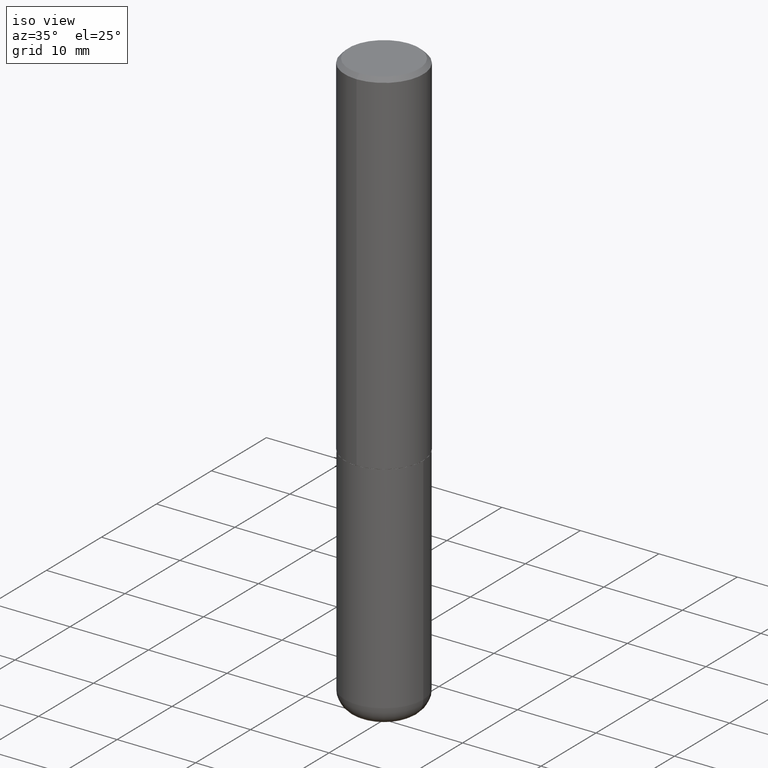
[diagram: clean part render]
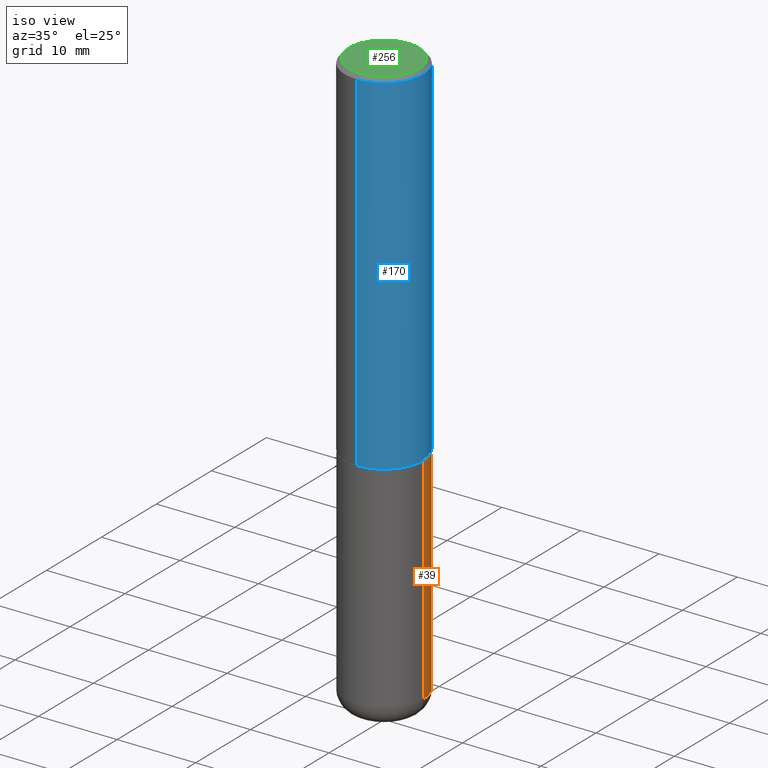
[diagram: same view with three faces highlighted in distinct colors, each labeled with its STEP entity id]
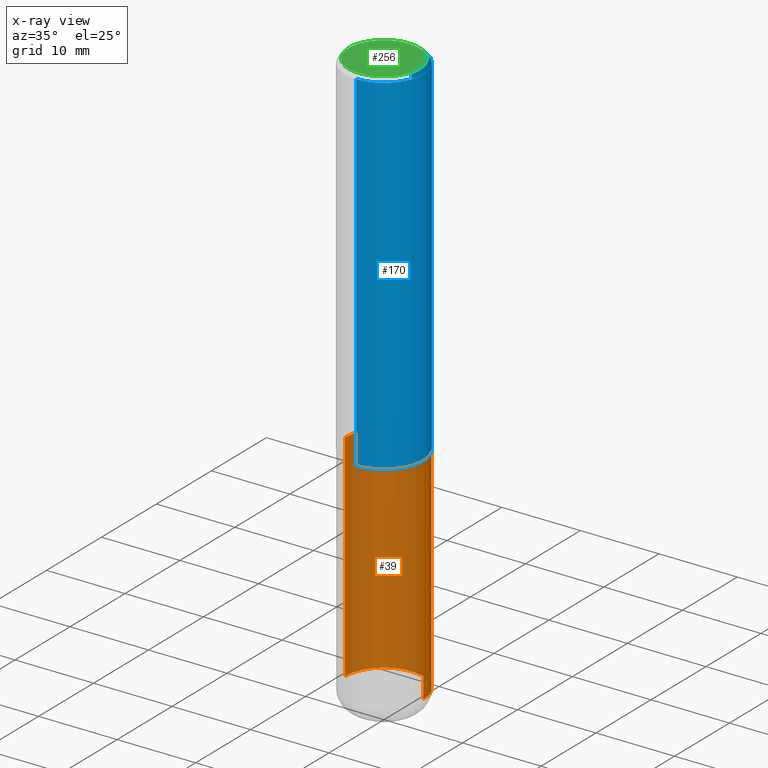
[diagram: x-ray of the same camera — body ghosted, the three highlighted faces saturated]
A machine part, iso view with three faces highlighted in distinct colors.
The next image is the same camera in x-ray (body ghosted, the three faces saturated) — at least one of them is partly hidden behind the body in this view.
Their STEP definitions:

[orange] entity #39 — the highlighted cylindrical surface (partial cylindrical patch) has radius 5 mm, axis along (-0, 0, 1).
#6 = EDGE_CURVE ( 'NONE', #149, #117, #176, .T. ) ;
#14 = CIRCLE ( 'NONE', #167, 0.1968500000000000250 ) ;
#23 = ORIENTED_EDGE ( 'NONE', *, *, #372, .T. ) ;
#24 = CARTESIAN_POINT ( 'NONE',  ( 4.332637083918205306E-29, -6.185857488028398715E-15, -1.771699999999999608 ) ) ;
#33 = EDGE_CURVE ( 'NONE', #306, #265, #368, .T. ) ;
#39 = ADVANCED_FACE ( 'NONE', ( #373 ), #298, .T. ) ;
#54 = DIRECTION ( 'NONE',  ( 1.000000000000000000, -6.982962677686265922E-15, 4.876176775795935793E-29 ) ) ;
#55 = VECTOR ( 'NONE', #57, 39.37007874015748143 ) ;
#57 = DIRECTION ( 'NONE',  ( -2.445468806185136877E-29, 3.491481338843145188E-15, 1.000000000000000000 ) ) ;
#70 = CIRCLE ( 'NONE', #282, 0.1968500000000000250 ) ;
#82 = DIRECTION ( 'NONE',  ( -2.445468806185136597E-29, 3.491481338843145583E-15, 1.000000000000000000 ) ) ;
#86 = EDGE_LOOP ( 'NONE', ( #23, #238, #336, #396 ) ) ;
#87 = DIRECTION ( 'NONE',  ( 1.000000000000000000, -6.982962677686267499E-15, 0.000000000000000000 ) ) ;
#101 = VECTOR ( 'NONE', #305, 39.37007874015748143 ) ;
#117 = VERTEX_POINT ( 'NONE', #343 ) ;
#132 = CARTESIAN_POINT ( 'NONE',  ( 0.1968500000000001915, -1.134068053669641561E-14, -2.854399999999999604 ) ) ;
#149 = VERTEX_POINT ( 'NONE', #132 ) ;
#167 = AXIS2_PLACEMENT_3D ( 'NONE', #401, #362, #404 ) ;
#176 = LINE ( 'NONE', #276, #55 ) ;
#184 = CARTESIAN_POINT ( 'NONE',  ( 0.000000000000000000, 0.000000000000000000, 0.000000000000000000 ) ) ;
#199 = EDGE_CURVE ( 'NONE', #117, #265, #70, .T. ) ;
#202 = CARTESIAN_POINT ( 'NONE',  ( -0.1968500000000000250, -6.677267535467378966E-15, -1.771699999999999608 ) ) ;
#213 = CARTESIAN_POINT ( 'NONE',  ( -0.1968500000000000250, 1.398703375343757393E-15, -9.682923725166783677E-30 ) ) ;
#238 = ORIENTED_EDGE ( 'NONE', *, *, #33, .T. ) ;
#265 = VERTEX_POINT ( 'NONE', #202 ) ;
#276 = CARTESIAN_POINT ( 'NONE',  ( 0.1968500000000000250, -1.374596203102541608E-15, 9.598753983154300858E-30 ) ) ;
#278 = DIRECTION ( 'NONE',  ( -2.445468806185136597E-29, 3.491481338843145583E-15, 1.000000000000000000 ) ) ;
#282 = AXIS2_PLACEMENT_3D ( 'NONE', #24, #278, #87 ) ;
#295 = CARTESIAN_POINT ( 'NONE',  ( -0.1968500000000001915, -8.567380958250113850E-15, -2.854399999999999604 ) ) ;
#298 = CYLINDRICAL_SURFACE ( 'NONE', #350, 0.1968500000000000250 ) ;
#305 = DIRECTION ( 'NONE',  ( -2.445468806185136877E-29, 3.491481338843145188E-15, 1.000000000000000000 ) ) ;
#306 = VERTEX_POINT ( 'NONE', #295 ) ;
#336 = ORIENTED_EDGE ( 'NONE', *, *, #199, .F. ) ;
#343 = CARTESIAN_POINT ( 'NONE',  ( 0.1968500000000000250, -7.560453691130941112E-15, -1.771699999999999608 ) ) ;
#350 = AXIS2_PLACEMENT_3D ( 'NONE', #184, #82, #54 ) ;
#362 = DIRECTION ( 'NONE',  ( -2.445468806185136597E-29, 3.491481338843145583E-15, 1.000000000000000000 ) ) ;
#368 = LINE ( 'NONE', #213, #101 ) ;
#372 = EDGE_CURVE ( 'NONE', #149, #306, #14, .T. ) ;
#373 = FACE_OUTER_BOUND ( 'NONE', #86, .T. ) ;
#396 = ORIENTED_EDGE ( 'NONE', *, *, #6, .F. ) ;
#401 = CARTESIAN_POINT ( 'NONE',  ( 6.980346160374851918E-29, -9.966084333593872426E-15, -2.854399999999999604 ) ) ;
#404 = DIRECTION ( 'NONE',  ( 1.000000000000000000, -6.982962677686267499E-15, 0.000000000000000000 ) ) ;

[blue] entity #170 — the highlighted cylindrical surface (partial cylindrical patch) has radius 5 mm, axis along (-0, 0, 1).
#9 = VERTEX_POINT ( 'NONE', #370 ) ;
#11 = DIRECTION ( 'NONE',  ( -2.443970379688463607E-29, 3.493627170871520955E-15, 1.000000000000000000 ) ) ;
#34 = AXIS2_PLACEMENT_3D ( 'NONE', #297, #262, #264 ) ;
#43 = CARTESIAN_POINT ( 'NONE',  ( 1.398703375343757985E-15, 0.1968500000000001360, -6.877205085860593881E-16 ) ) ;
#51 = ORIENTED_EDGE ( 'NONE', *, *, #315, .F. ) ;
#59 = CARTESIAN_POINT ( 'NONE',  ( -1.350489030861325626E-15, -0.1968500000000001082, -0.01999999999999935510 ) ) ;
#77 = CIRCLE ( 'NONE', #34, 0.1968500000000000527 ) ;
#95 = DIRECTION ( 'NONE',  ( -2.443970379688463607E-29, 3.493627170871520955E-15, 1.000000000000000000 ) ) ;
#142 = DIRECTION ( 'NONE',  ( -2.443970379688463326E-29, 3.493627170871520561E-15, 1.000000000000000000 ) ) ;
#148 = DIRECTION ( 'NONE',  ( -6.982962677686265922E-15, -1.000000000000000000, 4.163344669033670112E-15 ) ) ;
#154 = CARTESIAN_POINT ( 'NONE',  ( 1.374596203102542200E-15, 0.1968499999999999694, -0.02000000000000072900 ) ) ;
#155 = CYLINDRICAL_SURFACE ( 'NONE', #359, 0.1968500000000001360 ) ;
#170 = ADVANCED_FACE ( 'NONE', ( #389 ), #155, .T. ) ;
#173 = CARTESIAN_POINT ( 'NONE',  ( 4.327538351314362007E-29, -6.186165631462201115E-15, -1.770699999999999497 ) ) ;
#179 = EDGE_LOOP ( 'NONE', ( #263, #272, #51, #260 ) ) ;
#205 = VERTEX_POINT ( 'NONE', #59 ) ;
#208 = VERTEX_POINT ( 'NONE', #355 ) ;
#222 = CARTESIAN_POINT ( 'NONE',  ( -1.374596203102542397E-15, -0.1968500000000001360, 6.877205085860593881E-16 ) ) ;
#246 = DIRECTION ( 'NONE',  ( -2.443970379688463326E-29, 3.493627170871520561E-15, 1.000000000000000000 ) ) ;
#250 = LINE ( 'NONE', #222, #345 ) ;
#260 = ORIENTED_EDGE ( 'NONE', *, *, #413, .F. ) ;
#262 = DIRECTION ( 'NONE',  ( -2.443970379688463607E-29, 3.493627170871520955E-15, 1.000000000000000000 ) ) ;
#263 = ORIENTED_EDGE ( 'NONE', *, *, #318, .T. ) ;
#264 = DIRECTION ( 'NONE',  ( -6.982962677686265133E-15, -1.000000000000000000, 3.491137977679279029E-15 ) ) ;
#272 = ORIENTED_EDGE ( 'NONE', *, *, #317, .T. ) ;
#290 = CIRCLE ( 'NONE', #395, 0.1968500000000002470 ) ;
#297 = CARTESIAN_POINT ( 'NONE',  ( 4.887940759376938213E-31, -6.987254341743056504E-17, -0.02000000000000004205 ) ) ;
#314 = VECTOR ( 'NONE', #142, 39.37007874015748143 ) ;
#315 = EDGE_CURVE ( 'NONE', #205, #390, #77, .T. ) ;
#317 = EDGE_CURVE ( 'NONE', #9, #390, #391, .T. ) ;
#318 = EDGE_CURVE ( 'NONE', #208, #9, #290, .T. ) ;
#345 = VECTOR ( 'NONE', #246, 39.37007874015748143 ) ;
#355 = CARTESIAN_POINT ( 'NONE',  ( -1.374596203102499996E-15, -0.1968500000000064365, -1.770699999999998608 ) ) ;
#359 = AXIS2_PLACEMENT_3D ( 'NONE', #378, #95, #376 ) ;
#370 = CARTESIAN_POINT ( 'NONE',  ( 1.398703375343780073E-15, 0.1968499999999940575, -1.770700000000000385 ) ) ;
#376 = DIRECTION ( 'NONE',  ( -6.982962677686265922E-15, -1.000000000000000000, 3.493627170871520955E-15 ) ) ;
#378 = CARTESIAN_POINT ( 'NONE',  ( 0.000000000000000000, 0.000000000000000000, 0.000000000000000000 ) ) ;
#389 = FACE_OUTER_BOUND ( 'NONE', #179, .T. ) ;
#390 = VERTEX_POINT ( 'NONE', #154 ) ;
#391 = LINE ( 'NONE', #43, #314 ) ;
#395 = AXIS2_PLACEMENT_3D ( 'NONE', #173, #11, #148 ) ;
#413 = EDGE_CURVE ( 'NONE', #208, #205, #250, .T. ) ;

[green] entity #256 — the highlighted planar face has unit normal (0, -0, -1).
#12 = ORIENTED_EDGE ( 'NONE', *, *, #383, .T. ) ;
#18 = VERTEX_POINT ( 'NONE', #79 ) ;
#21 = CARTESIAN_POINT ( 'NONE',  ( 5.937032679118867305E-45, -8.486919012809721302E-31, -2.429257215415053213E-16 ) ) ;
#25 = DIRECTION ( 'NONE',  ( -6.982962677686265922E-15, -1.000000000000000000, 3.493627170871521350E-15 ) ) ;
#37 = DIRECTION ( 'NONE',  ( -6.982962677686265922E-15, -1.000000000000000000, 3.493627170871521350E-15 ) ) ;
#60 = DIRECTION ( 'NONE',  ( -2.443970379688463607E-29, 3.493627170871520955E-15, 1.000000000000000000 ) ) ;
#79 = CARTESIAN_POINT ( 'NONE',  ( -1.281884050883611478E-15, -0.1768500000000002570, 3.749222436271242413E-16 ) ) ;
#83 = DIRECTION ( 'NONE',  ( -2.443970379688463607E-29, 3.493627170871520955E-15, 1.000000000000000000 ) ) ;
#88 = CARTESIAN_POINT ( 'NONE',  ( 5.937032679118867305E-45, -8.486919012809721302E-31, -2.429257215415053213E-16 ) ) ;
#114 = VERTEX_POINT ( 'NONE', #320 ) ;
#115 = ORIENTED_EDGE ( 'NONE', *, *, #216, .T. ) ;
#128 = DIRECTION ( 'NONE',  ( 2.443970379688463607E-29, -3.493627170871520561E-15, -1.000000000000000000 ) ) ;
#140 = CIRCLE ( 'NONE', #211, 0.1768500000000002570 ) ;
#164 = PLANE ( 'NONE',  #405 ) ;
#204 = DIRECTION ( 'NONE',  ( 6.982962677686265922E-15, 1.000000000000000000, -3.493627170871520561E-15 ) ) ;
#211 = AXIS2_PLACEMENT_3D ( 'NONE', #88, #60, #37 ) ;
#216 = EDGE_CURVE ( 'NONE', #114, #18, #140, .T. ) ;
#225 = AXIS2_PLACEMENT_3D ( 'NONE', #21, #83, #25 ) ;
#243 = EDGE_LOOP ( 'NONE', ( #115, #12 ) ) ;
#256 = ADVANCED_FACE ( 'NONE', ( #319 ), #164, .F. ) ;
#286 = CARTESIAN_POINT ( 'NONE',  ( 1.234936949548817970E-15, 0.1768500000000002570, -7.393108259393820014E-16 ) ) ;
#319 = FACE_OUTER_BOUND ( 'NONE', #243, .T. ) ;
#320 = CARTESIAN_POINT ( 'NONE',  ( 1.304766576325680085E-15, 0.1768500000000002570, -8.607736867101346867E-16 ) ) ;
#352 = CIRCLE ( 'NONE', #225, 0.1768500000000002570 ) ;
#383 = EDGE_CURVE ( 'NONE', #18, #114, #352, .T. ) ;
#405 = AXIS2_PLACEMENT_3D ( 'NONE', #286, #128, #204 ) ;